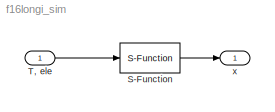
MODEL f16longi_sim
KIND model
BLOCK [S-Function] S-Function
  EnableBusSupport = off
  FunctionName = f16sfcn
  Parameters = X0
  Ports = [1, 1]
  SID = 12
BLOCK [Inport] T, ele
  IconDisplay = Port number
  PortDimensions = 2
  SID = 2
BLOCK [Outport] x
  IconDisplay = Port number
  PortDimensions = 4
  SID = 9
LINE S-Function:1 -> x:1
LINE T, ele:1 -> S-Function:1
